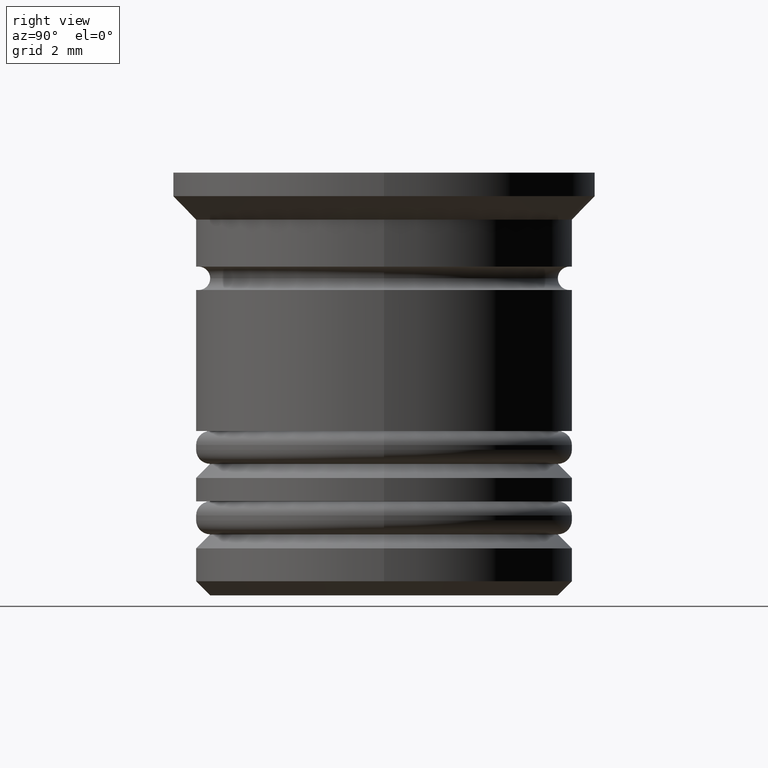
[diagram: clean part render]
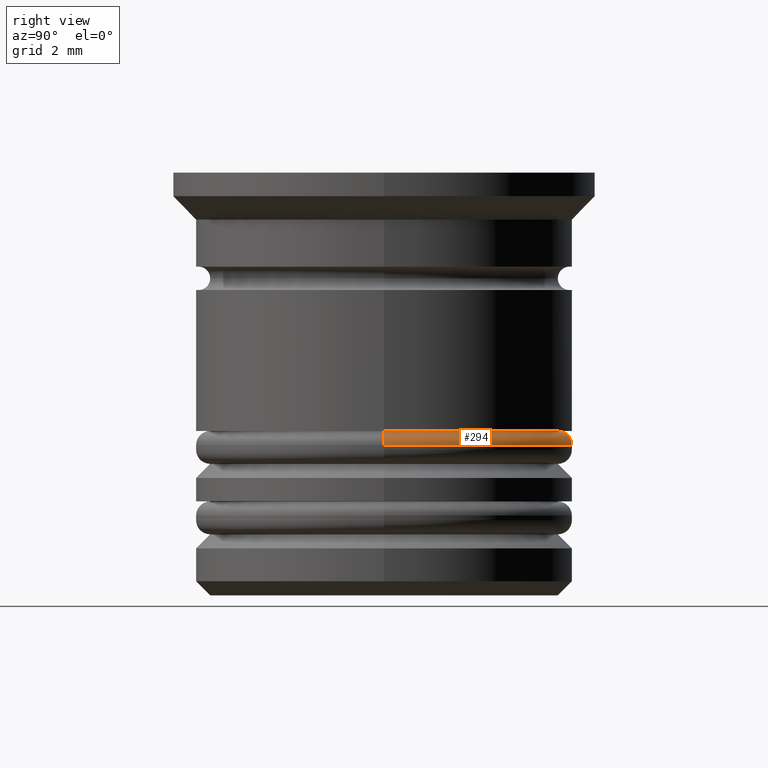
[diagram: same view with one face highlighted and labeled with its STEP entity id]
A machine part, right view. The second image highlights one B-rep face of the part: STEP entity #294.
In plain terms, the highlighted toroidal blend (fillet) surface has major radius 3.7 mm and minor (blend) radius 0.3 mm.
Its self-contained STEP definition (entity closure, byte-faithful):
#57 = DIRECTION ( 'NONE',  ( -1.000000000000000000, 0.000000000000000000, 0.000000000000000000 ) ) ;
#125 = VERTEX_POINT ( 'NONE', #2037 ) ;
#167 = CIRCLE ( 'NONE', #876, 3.700000000000001066 ) ;
#181 = DIRECTION ( 'NONE',  ( 0.000000000000000000, 0.000000000000000000, -1.000000000000000000 ) ) ;
#222 = CARTESIAN_POINT ( 'NONE',  ( 0.000000000000000000, 0.000000000000000000, -5.500000000000000000 ) ) ;
#234 = ORIENTED_EDGE ( 'NONE', *, *, #404, .F. ) ;
#257 = CARTESIAN_POINT ( 'NONE',  ( 3.700000000000001066, 4.531193156845208173E-16, -5.799999999999999822 ) ) ;
#261 = CARTESIAN_POINT ( 'NONE',  ( 0.000000000000000000, 0.000000000000000000, -5.799999999999999822 ) ) ;
#294 = ADVANCED_FACE ( 'NONE', ( #1188 ), #1308, .T. ) ;
#322 = CARTESIAN_POINT ( 'NONE',  ( -3.700000000000001066, 0.000000000000000000, -5.500000000000000000 ) ) ;
#338 = CIRCLE ( 'NONE', #1469, 0.2999999999999999334 ) ;
#404 = EDGE_CURVE ( 'NONE', #1529, #884, #836, .T. ) ;
#426 = ORIENTED_EDGE ( 'NONE', *, *, #1722, .F. ) ;
#438 = AXIS2_PLACEMENT_3D ( 'NONE', #1729, #1208, #1367 ) ;
#464 = AXIS2_PLACEMENT_3D ( 'NONE', #1419, #1590, #181 ) ;
#567 = CARTESIAN_POINT ( 'NONE',  ( -4.000000000000000888, 4.898587196589413815E-16, -5.799999999999999822 ) ) ;
#606 = DIRECTION ( 'NONE',  ( -1.000000000000000000, -1.224646799147353207E-16, 0.000000000000000000 ) ) ;
#670 = EDGE_CURVE ( 'NONE', #1437, #125, #338, .T. ) ;
#802 = AXIS2_PLACEMENT_3D ( 'NONE', #261, #856, #895 ) ;
#836 = CIRCLE ( 'NONE', #464, 0.2999999999999999334 ) ;
#856 = DIRECTION ( 'NONE',  ( 0.000000000000000000, 0.000000000000000000, -1.000000000000000000 ) ) ;
#876 = AXIS2_PLACEMENT_3D ( 'NONE', #222, #1461, #57 ) ;
#884 = VERTEX_POINT ( 'NONE', #567 ) ;
#895 = DIRECTION ( 'NONE',  ( -1.000000000000000000, 0.000000000000000000, 0.000000000000000000 ) ) ;
#969 = CIRCLE ( 'NONE', #438, 4.000000000000000888 ) ;
#1048 = DIRECTION ( 'NONE',  ( -1.224646799147353207E-16, 1.000000000000000000, 0.000000000000000000 ) ) ;
#1138 = ORIENTED_EDGE ( 'NONE', *, *, #1340, .F. ) ;
#1188 = FACE_OUTER_BOUND ( 'NONE', #1540, .T. ) ;
#1208 = DIRECTION ( 'NONE',  ( 0.000000000000000000, 0.000000000000000000, -1.000000000000000000 ) ) ;
#1308 = TOROIDAL_SURFACE ( 'NONE', #802, 3.700000000000001066, 0.2999999999999999889 ) ;
#1340 = EDGE_CURVE ( 'NONE', #884, #125, #969, .T. ) ;
#1367 = DIRECTION ( 'NONE',  ( -1.000000000000000000, 0.000000000000000000, 0.000000000000000000 ) ) ;
#1419 = CARTESIAN_POINT ( 'NONE',  ( -3.700000000000001066, 0.000000000000000000, -5.799999999999999822 ) ) ;
#1437 = VERTEX_POINT ( 'NONE', #1606 ) ;
#1449 = ORIENTED_EDGE ( 'NONE', *, *, #670, .T. ) ;
#1461 = DIRECTION ( 'NONE',  ( -0.000000000000000000, -0.000000000000000000, 1.000000000000000000 ) ) ;
#1469 = AXIS2_PLACEMENT_3D ( 'NONE', #257, #1048, #606 ) ;
#1529 = VERTEX_POINT ( 'NONE', #322 ) ;
#1540 = EDGE_LOOP ( 'NONE', ( #426, #1449, #1138, #234 ) ) ;
#1590 = DIRECTION ( 'NONE',  ( -0.000000000000000000, -1.000000000000000000, -0.000000000000000000 ) ) ;
#1606 = CARTESIAN_POINT ( 'NONE',  ( 3.700000000000001066, 4.714890176717310501E-16, -5.500000000000000000 ) ) ;
#1722 = EDGE_CURVE ( 'NONE', #1437, #1529, #167, .T. ) ;
#1729 = CARTESIAN_POINT ( 'NONE',  ( 0.000000000000000000, 0.000000000000000000, -5.799999999999999822 ) ) ;
#2037 = CARTESIAN_POINT ( 'NONE',  ( 4.000000000000000888, 0.000000000000000000, -5.799999999999999822 ) ) ;